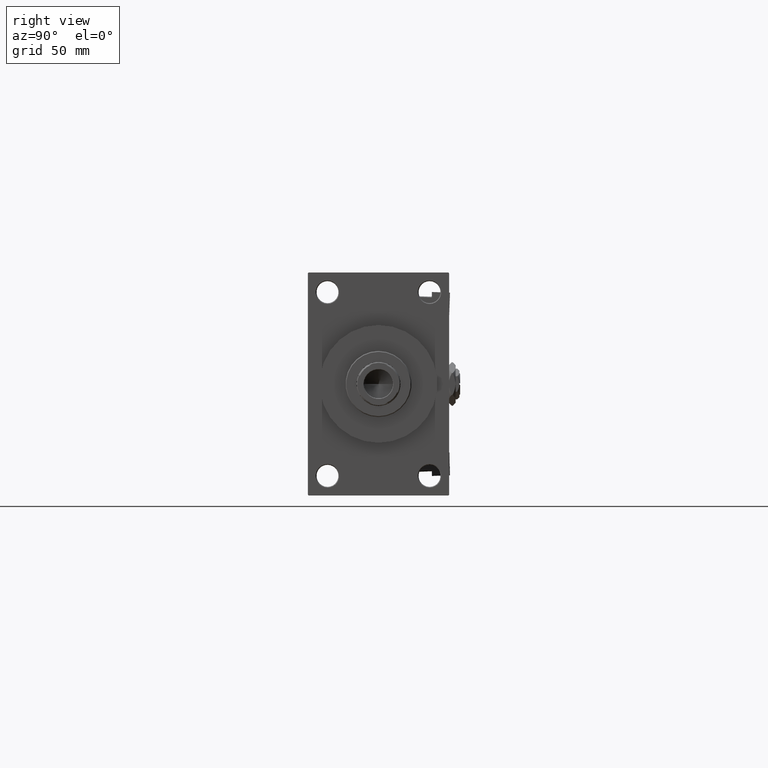
[diagram: clean part render]
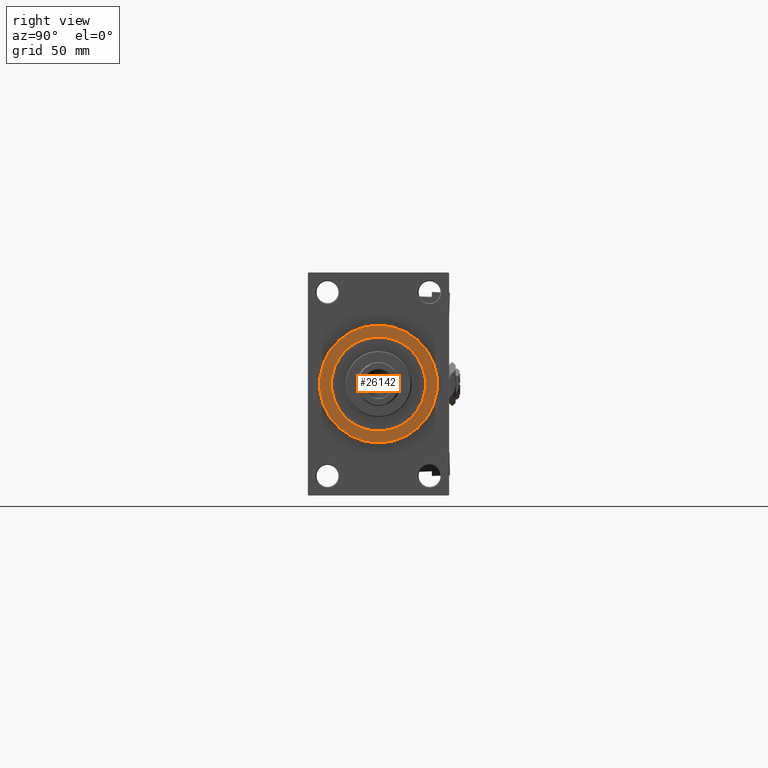
[diagram: same view with one face highlighted and labeled with its STEP entity id]
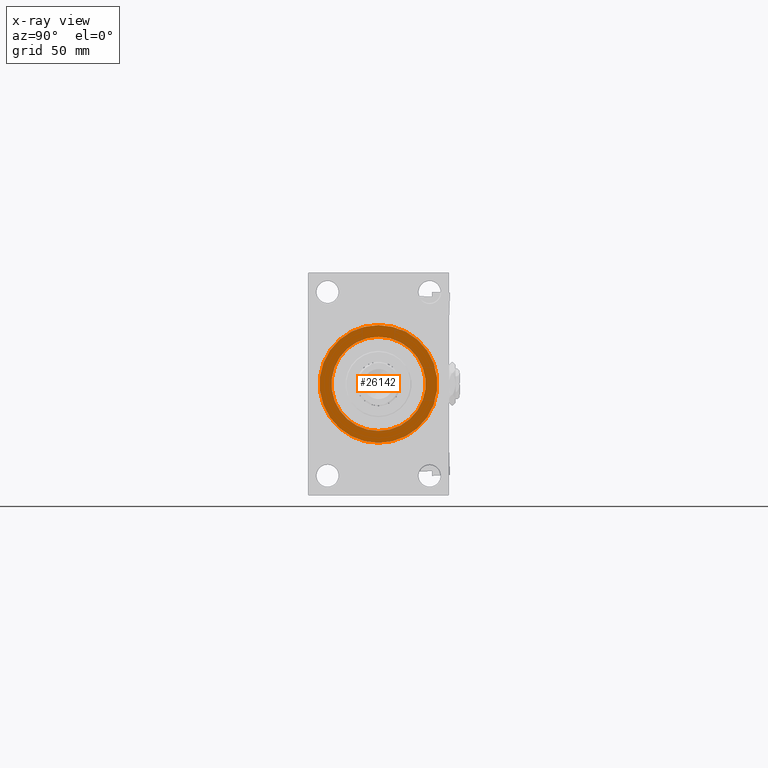
[diagram: x-ray of the same camera — body ghosted, the highlighted face saturated]
A machine part, right view. The second image highlights one B-rep face of the part: STEP entity #26142.
The next image is the same camera in x-ray: the body ghosted, the highlighted face saturated — about 0% of this face is hidden behind the body in this view.
In plain terms, the highlighted planar face has unit normal (1, 0, 0).
Its self-contained STEP definition (entity closure, byte-faithful):
#1602 = AXIS2_PLACEMENT_3D ( 'NONE', #45731, #18159, #2269 ) ;
#2269 = DIRECTION ( 'NONE',  ( 0.000000000000000000, 0.000000000000000000, -1.000000000000000000 ) ) ;
#3747 = ORIENTED_EDGE ( 'NONE', *, *, #36926, .F. ) ;
#3818 = VERTEX_POINT ( 'NONE', #8895 ) ;
#8555 = CARTESIAN_POINT ( 'NONE',  ( 385.9999999999999432, 0.000000000000000000, 0.000000000000000000 ) ) ;
#8895 = CARTESIAN_POINT ( 'NONE',  ( 385.9999999999999432, 3.673940397442059178E-15, 30.00000000000000000 ) ) ;
#9923 = CARTESIAN_POINT ( 'NONE',  ( 385.9999999999999432, 0.000000000000000000, -30.00000000000000000 ) ) ;
#10179 = CARTESIAN_POINT ( 'NONE',  ( 385.9999999999999432, 0.000000000000000000, 37.50000000000000711 ) ) ;
#11252 = FACE_OUTER_BOUND ( 'NONE', #46218, .T. ) ;
#12448 = EDGE_CURVE ( 'NONE', #3818, #44424, #33649, .T. ) ;
#14122 = AXIS2_PLACEMENT_3D ( 'NONE', #38211, #43148, #27301 ) ;
#15435 = CARTESIAN_POINT ( 'NONE',  ( 385.9999999999999432, 0.000000000000000000, 0.000000000000000000 ) ) ;
#17780 = DIRECTION ( 'NONE',  ( 1.000000000000000000, 0.000000000000000000, 0.000000000000000000 ) ) ;
#18159 = DIRECTION ( 'NONE',  ( 1.000000000000000000, 0.000000000000000000, 0.000000000000000000 ) ) ;
#20484 = ORIENTED_EDGE ( 'NONE', *, *, #34563, .T. ) ;
#20721 = CIRCLE ( 'NONE', #1602, 37.50000000000000711 ) ;
#20754 = AXIS2_PLACEMENT_3D ( 'NONE', #15435, #30803, #43771 ) ;
#21936 = CARTESIAN_POINT ( 'NONE',  ( 385.9999999999999432, 0.000000000000000000, 0.000000000000000000 ) ) ;
#22156 = VERTEX_POINT ( 'NONE', #36495 ) ;
#25594 = DIRECTION ( 'NONE',  ( 0.000000000000000000, 0.000000000000000000, -1.000000000000000000 ) ) ;
#25653 = EDGE_CURVE ( 'NONE', #44422, #22156, #20721, .T. ) ;
#25683 = ORIENTED_EDGE ( 'NONE', *, *, #25653, .T. ) ;
#26142 = ADVANCED_FACE ( 'NONE', ( #39360, #11252 ), #42758, .T. ) ;
#27301 = DIRECTION ( 'NONE',  ( 0.000000000000000000, 0.000000000000000000, -1.000000000000000000 ) ) ;
#30803 = DIRECTION ( 'NONE',  ( 1.000000000000000000, 0.000000000000000000, 0.000000000000000000 ) ) ;
#33649 = CIRCLE ( 'NONE', #43647, 30.00000000000000000 ) ;
#34563 = EDGE_CURVE ( 'NONE', #22156, #44422, #38235, .T. ) ;
#36495 = CARTESIAN_POINT ( 'NONE',  ( 385.9999999999999432, 4.592425496802575156E-15, -37.50000000000000711 ) ) ;
#36926 = EDGE_CURVE ( 'NONE', #44424, #3818, #38350, .T. ) ;
#38211 = CARTESIAN_POINT ( 'NONE',  ( 385.9999999999999432, 0.000000000000000000, 0.000000000000000000 ) ) ;
#38235 = CIRCLE ( 'NONE', #14122, 37.50000000000000711 ) ;
#38350 = CIRCLE ( 'NONE', #41643, 30.00000000000000000 ) ;
#39360 = FACE_BOUND ( 'NONE', #42543, .T. ) ;
#40062 = DIRECTION ( 'NONE',  ( 1.000000000000000000, 0.000000000000000000, 0.000000000000000000 ) ) ;
#41643 = AXIS2_PLACEMENT_3D ( 'NONE', #21936, #17780, #25594 ) ;
#42543 = EDGE_LOOP ( 'NONE', ( #3747, #47798 ) ) ;
#42758 = PLANE ( 'NONE',  #20754 ) ;
#43148 = DIRECTION ( 'NONE',  ( 1.000000000000000000, 0.000000000000000000, 0.000000000000000000 ) ) ;
#43647 = AXIS2_PLACEMENT_3D ( 'NONE', #8555, #40062, #48911 ) ;
#43771 = DIRECTION ( 'NONE',  ( 0.000000000000000000, 0.000000000000000000, -1.000000000000000000 ) ) ;
#44422 = VERTEX_POINT ( 'NONE', #10179 ) ;
#44424 = VERTEX_POINT ( 'NONE', #9923 ) ;
#45731 = CARTESIAN_POINT ( 'NONE',  ( 385.9999999999999432, 0.000000000000000000, 0.000000000000000000 ) ) ;
#46218 = EDGE_LOOP ( 'NONE', ( #25683, #20484 ) ) ;
#47798 = ORIENTED_EDGE ( 'NONE', *, *, #12448, .F. ) ;
#48911 = DIRECTION ( 'NONE',  ( 0.000000000000000000, 0.000000000000000000, -1.000000000000000000 ) ) ;